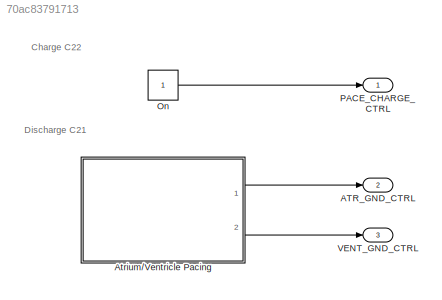
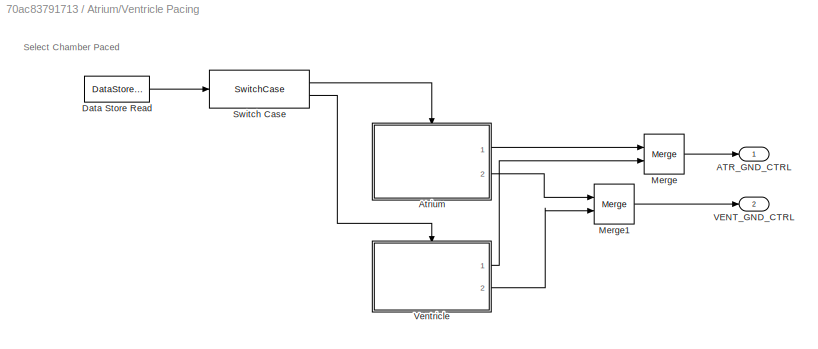
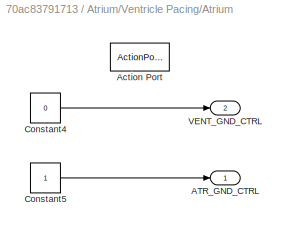
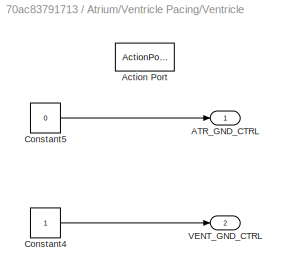
MODEL slx_70ac83791713
KIND model
CONFIG AbsTol = auto
CONFIG EnableMultiTasking = on
CONFIG FixedStep = 1e-3
CONFIG MaxStep = auto
CONFIG MinStep = auto
CONFIG RelTol = 1e-3
CONFIG SampleTimeConstraint = Unconstrained
CONFIG Solver = FixedStepAuto
CONFIG SolverName = FixedStepAuto
CONFIG StartTime = 0.0
CONFIG StopTime = 10.0
BLOCK [Outport] ATR_GND_CTRL
  Port = 2
BLOCK [SubSystem] Atrium//Ventricle Pacing
  Ports = [0, 2]
  RequestExecContextInheritance = off
BLOCK [Outport] Atrium//Ventricle Pacing/ATR_GND_CTRL
BLOCK [SubSystem] Atrium//Ventricle Pacing/Atrium
  Ports = [0, 2, 0, 0, 0, 0, 0, 1]
  Priority = 5
  RequestExecContextInheritance = off
  VariantControl = ATR_PACING
BLOCK [Outport] Atrium//Ventricle Pacing/Atrium/ATR_GND_CTRL
BLOCK [ActionPort] Atrium//Ventricle Pacing/Atrium/Action Port
  ActionPortLabel = case [ 1 ]:
BLOCK [Constant] Atrium//Ventricle Pacing/Atrium/Constant4
  Value = 0
BLOCK [Constant] Atrium//Ventricle Pacing/Atrium/Constant5
BLOCK [Outport] Atrium//Ventricle Pacing/Atrium/VENT_GND_CTRL
  Port = 2
BLOCK [DataStoreRead] Atrium//Ventricle Pacing/Data Store Read
  DataStoreName = Chamber
  Ports = [0, 1]
BLOCK [Merge] Atrium//Ventricle Pacing/Merge
  Ports = [2, 1]
BLOCK [Merge] Atrium//Ventricle Pacing/Merge1
  Ports = [2, 1]
BLOCK [SwitchCase] Atrium//Ventricle Pacing/Switch Case
  CaseConditions = {1,2}
  Ports = [1, 2]
  ShowDefaultCase = off
BLOCK [Outport] Atrium//Ventricle Pacing/VENT_GND_CTRL
  Port = 2
BLOCK [SubSystem] Atrium//Ventricle Pacing/Ventricle
  Ports = [0, 2, 0, 0, 0, 0, 0, 1]
  Priority = 5
  RequestExecContextInheritance = off
  VariantControl = VENT_PACING
BLOCK [Outport] Atrium//Ventricle Pacing/Ventricle/ATR_GND_CTRL
BLOCK [ActionPort] Atrium//Ventricle Pacing/Ventricle/Action Port
  ActionPortLabel = case [ 2 ]:
BLOCK [Constant] Atrium//Ventricle Pacing/Ventricle/Constant4
BLOCK [Constant] Atrium//Ventricle Pacing/Ventricle/Constant5
  Value = 0
BLOCK [Outport] Atrium//Ventricle Pacing/Ventricle/VENT_GND_CTRL
  Port = 2
BLOCK [Constant] On
BLOCK [Outport] PACE_CHARGE_CTRL
BLOCK [Outport] VENT_GND_CTRL
  Port = 3
ANNOTATION (root): Charge C22
ANNOTATION (root): Discharge C21
ANNOTATION Atrium//Ventricle Pacing: Select Chamber Paced
LINE Atrium//Ventricle Pacing/Atrium/Constant4:1 -> Atrium//Ventricle Pacing/Atrium/VENT_GND_CTRL:1
LINE Atrium//Ventricle Pacing/Atrium/Constant5:1 -> Atrium//Ventricle Pacing/Atrium/ATR_GND_CTRL:1
LINE Atrium//Ventricle Pacing/Atrium:1 -> Atrium//Ventricle Pacing/Merge:1
LINE Atrium//Ventricle Pacing/Atrium:2 -> Atrium//Ventricle Pacing/Merge1:1
LINE Atrium//Ventricle Pacing/Data Store Read:1 -> Atrium//Ventricle Pacing/Switch Case:1
LINE Atrium//Ventricle Pacing/Merge1:1 -> Atrium//Ventricle Pacing/VENT_GND_CTRL:1
LINE Atrium//Ventricle Pacing/Merge:1 -> Atrium//Ventricle Pacing/ATR_GND_CTRL:1
LINE Atrium//Ventricle Pacing/Switch Case:1 -> Atrium//Ventricle Pacing/Atrium:ifaction
LINE Atrium//Ventricle Pacing/Switch Case:2 -> Atrium//Ventricle Pacing/Ventricle:ifaction
LINE Atrium//Ventricle Pacing/Ventricle/Constant4:1 -> Atrium//Ventricle Pacing/Ventricle/VENT_GND_CTRL:1
LINE Atrium//Ventricle Pacing/Ventricle/Constant5:1 -> Atrium//Ventricle Pacing/Ventricle/ATR_GND_CTRL:1
LINE Atrium//Ventricle Pacing/Ventricle:1 -> Atrium//Ventricle Pacing/Merge:2
LINE Atrium//Ventricle Pacing/Ventricle:2 -> Atrium//Ventricle Pacing/Merge1:2
LINE Atrium//Ventricle Pacing:1 -> ATR_GND_CTRL:1
LINE Atrium//Ventricle Pacing:2 -> VENT_GND_CTRL:1
LINE On:1 -> PACE_CHARGE_CTRL:1
